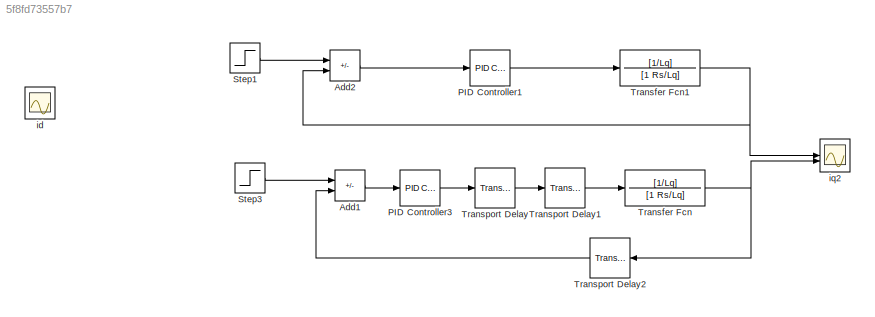
MODEL slx_5f8fd73557b7
KIND model
CONFIG AbsTol = auto
CONFIG EnableMultiTasking = off
CONFIG FixedStep = 0.00001
CONFIG MaxStep = auto
CONFIG MinStep = auto
CONFIG RelTol = 1e-3
CONFIG SampleTimeConstraint = Unconstrained
CONFIG SolverName = FixedStepAuto
CONFIG StartTime = 0.0
CONFIG StopTime = 0.02
BLOCK [Sum] Add1
  IconShape = rectangular
  Inputs = +-
BLOCK [Sum] Add2
  IconShape = rectangular
  Inputs = +-
BLOCK [Reference] PID Controller1  REF=slpidlib/PID Controller
  LibrarySourceBlock = simulink/Continuous/PID Controller
  SourceBlock = slpidlib/PID Controller
  SourceType = PID 1dof
BLOCK [Reference] PID Controller3  REF=slpidlib/PID Controller
  LibrarySourceBlock = simulink/Continuous/PID Controller
  SourceBlock = slpidlib/PID Controller
  SourceType = PID 1dof
BLOCK [Step] Step1
  After = 100
  SampleTime = 0
  Time = 0
BLOCK [Step] Step3
  After = 100
  SampleTime = 0
  Time = 0
BLOCK [TransferFcn] Transfer Fcn
  Denominator = [1 Rs/Lq]
  Numerator = [1/Lq]
BLOCK [TransferFcn] Transfer Fcn1
  Denominator = [1 Rs/Lq]
  Numerator = [1/Lq]
BLOCK [TransportDelay] Transport Delay
  DelayTime = 1/8000
BLOCK [TransportDelay] Transport Delay1
  DelayTime = 0.5*(1/8000)
BLOCK [TransportDelay] Transport Delay2
  DelayTime = 1/(2*pi*2000)
  NameLocation = top
BLOCK [Scope] id
  Floating = off
  NumInputPorts = 1
  ScopeSpecificationString = Simulink.scopes.TimeScopeBlockCfg('CurrentConfiguration', extmgr.ConfigurationSet(extmgr.Configuration('Core','General UI',true,'FigureColor',[1 1 1]),extmgr.Configuration('Core','Source UI',true),extmgr.Configuration('Sources','WiredSimulink',true,'DataLoggingVariableName','ScopeData4'),extmgr.Configuration('Visuals','Time Domain',true,'SerializedDisplays',{struct('MinYLimReal','-1.00000','MaxYLi...<+1546ch>
BLOCK [Scope] iq2
  Floating = off
  NumInputPorts = 2
  ScopeSpecificationString = Simulink.scopes.TimeScopeBlockCfg('CurrentConfiguration', extmgr.ConfigurationSet(extmgr.Configuration('Core','General UI',true,'FigureColor',[1 1 1]),extmgr.Configuration('Core','Source UI',true),extmgr.Configuration('Sources','WiredSimulink',true,'DataLoggingVariableName','ScopeData2'),extmgr.Configuration('Visuals','Time Domain',true,'SerializedDisplays',{struct('MinYLimReal','-12.51644','MaxYL...<+1591ch>
LINE Add1:1 -> PID Controller3:1
LINE Add2:1 -> PID Controller1:1
LINE PID Controller1:1 -> Transfer Fcn1:1
LINE PID Controller3:1 -> Transport Delay:1
LINE Step1:1 -> Add2:1
LINE Step3:1 -> Add1:1
NET Transfer Fcn1:1 -> Add2:2, iq2:1
NET Transfer Fcn:1 -> Transport Delay2:1, iq2:2
LINE Transport Delay1:1 -> Transfer Fcn:1
LINE Transport Delay2:1 -> Add1:2
LINE Transport Delay:1 -> Transport Delay1:1
note: NET lines group one-source signal fan-out (src -> all destinations, sorted); 1:1 wires keep LINE
